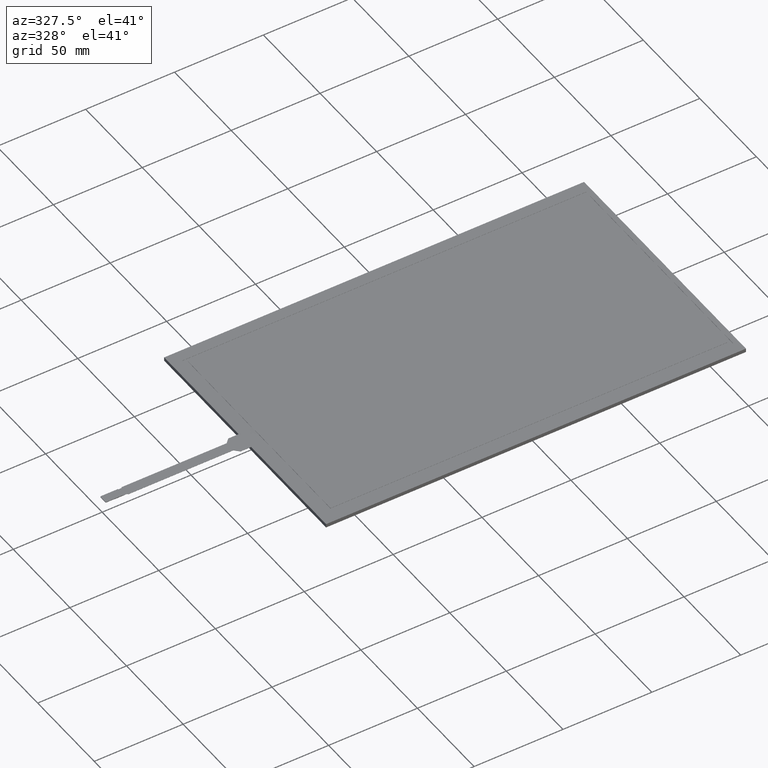
[diagram: clean part render]
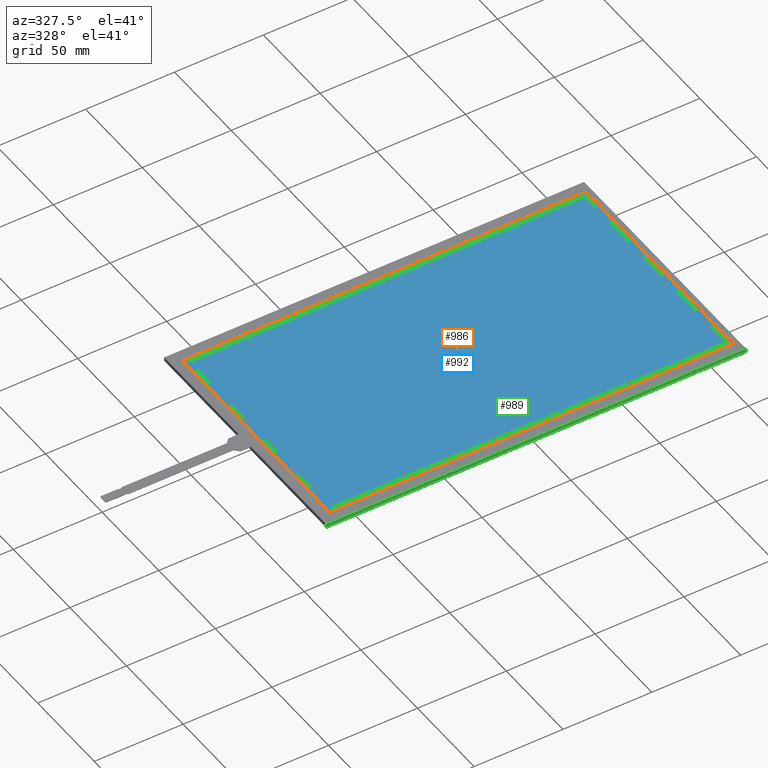
[diagram: same view with three faces highlighted in distinct colors, each labeled with its STEP entity id]
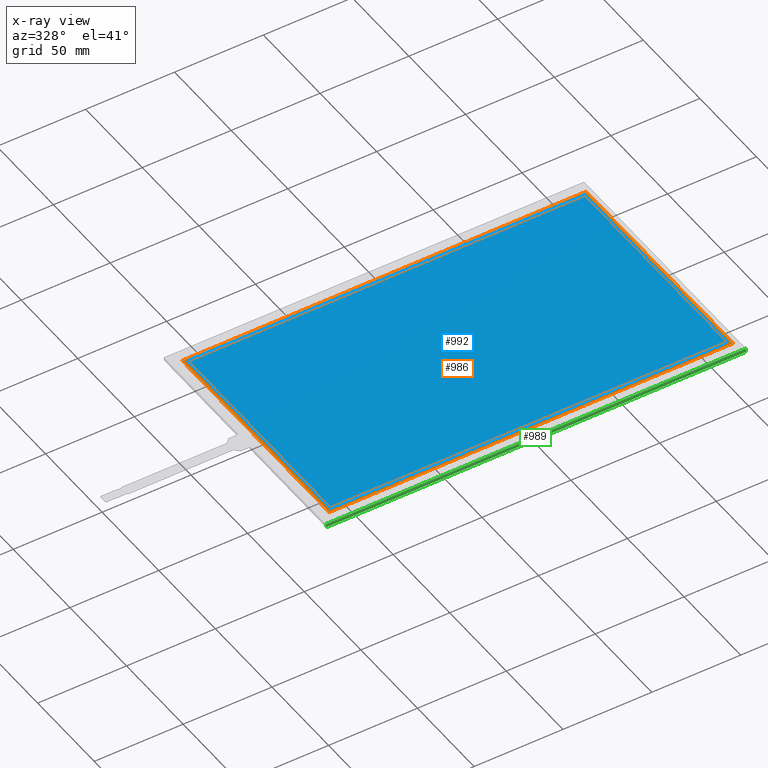
[diagram: x-ray of the same camera — body ghosted, the three highlighted faces saturated]
A machine part, auxiliary view with three faces highlighted in distinct colors.
The next image is the same camera in x-ray (body ghosted, the three faces saturated) — at least one of them is partly hidden behind the body in this view.
Their STEP definitions:

[orange] entity #986 — the highlighted planar face has unit normal (0, 0, -1).
#66=FACE_BOUND('',#129,.T.);
#76=FACE_OUTER_BOUND('',#128,.T.);
#128=EDGE_LOOP('',(#688,#689,#690,#691));
#129=EDGE_LOOP('',(#692,#693,#694,#695));
#176=LINE('',#1382,#302);
#180=LINE('',#1389,#306);
#183=LINE('',#1395,#309);
#185=LINE('',#1398,#311);
#188=LINE('',#1406,#314);
#192=LINE('',#1413,#318);
#195=LINE('',#1419,#321);
#197=LINE('',#1422,#323);
#302=VECTOR('',#1124,10.);
#306=VECTOR('',#1130,10.);
#309=VECTOR('',#1135,10.);
#311=VECTOR('',#1139,10.);
#314=VECTOR('',#1144,10.);
#318=VECTOR('',#1150,10.);
#321=VECTOR('',#1155,10.);
#323=VECTOR('',#1159,10.);
#428=VERTEX_POINT('',#1379);
#429=VERTEX_POINT('',#1381);
#431=VERTEX_POINT('',#1387);
#433=VERTEX_POINT('',#1393);
#436=VERTEX_POINT('',#1403);
#437=VERTEX_POINT('',#1405);
#439=VERTEX_POINT('',#1411);
#441=VERTEX_POINT('',#1417);
#520=EDGE_CURVE('',#428,#429,#176,.T.);
#524=EDGE_CURVE('',#431,#428,#180,.T.);
#527=EDGE_CURVE('',#433,#431,#183,.T.);
#529=EDGE_CURVE('',#429,#433,#185,.T.);
#532=EDGE_CURVE('',#436,#437,#188,.T.);
#536=EDGE_CURVE('',#439,#436,#192,.T.);
#539=EDGE_CURVE('',#441,#439,#195,.T.);
#541=EDGE_CURVE('',#437,#441,#197,.T.);
#688=ORIENTED_EDGE('',*,*,#541,.F.);
#689=ORIENTED_EDGE('',*,*,#532,.F.);
#690=ORIENTED_EDGE('',*,*,#536,.F.);
#691=ORIENTED_EDGE('',*,*,#539,.F.);
#692=ORIENTED_EDGE('',*,*,#529,.F.);
#693=ORIENTED_EDGE('',*,*,#520,.F.);
#694=ORIENTED_EDGE('',*,*,#524,.F.);
#695=ORIENTED_EDGE('',*,*,#527,.F.);
#940=PLANE('',#1062);
#986=ADVANCED_FACE('',(#76,#66),#940,.F.);
#1062=AXIS2_PLACEMENT_3D('',#1423,#1160,#1161);
#1124=DIRECTION('',(1.,0.,0.));
#1130=DIRECTION('',(0.,-1.,0.));
#1135=DIRECTION('',(-1.,0.,0.));
#1139=DIRECTION('',(0.,1.,0.));
#1144=DIRECTION('',(-4.10623402542823E-16,1.,0.));
#1150=DIRECTION('',(-1.,-1.17266757288107E-16,0.));
#1155=DIRECTION('',(0.,-1.,0.));
#1159=DIRECTION('',(1.,0.,0.));
#1160=DIRECTION('center_axis',(0.,0.,-1.));
#1161=DIRECTION('ref_axis',(-1.,0.,0.));
#1379=CARTESIAN_POINT('',(-111.61,-62.89,-0.1));
#1381=CARTESIAN_POINT('',(111.61,-62.89,-0.1));
#1382=CARTESIAN_POINT('',(111.61,-62.89,-0.1));
#1387=CARTESIAN_POINT('',(-111.61,62.89,-0.1));
#1389=CARTESIAN_POINT('',(-111.61,-62.89,-0.1));
#1393=CARTESIAN_POINT('',(111.61,62.89,-0.1));
#1395=CARTESIAN_POINT('',(-111.61,62.89,-0.1));
#1398=CARTESIAN_POINT('',(111.61,62.89,-0.1));
#1403=CARTESIAN_POINT('',(-113.61,-64.89,-0.1));
#1405=CARTESIAN_POINT('',(-113.61,64.89,-0.1));
#1406=CARTESIAN_POINT('',(-113.61,64.89,-0.1));
#1411=CARTESIAN_POINT('',(113.61,-64.89,-0.1));
#1413=CARTESIAN_POINT('',(-113.61,-64.89,-0.1));
#1417=CARTESIAN_POINT('',(113.61,64.89,-0.1));
#1419=CARTESIAN_POINT('',(113.61,-64.89,-0.1));
#1422=CARTESIAN_POINT('',(113.61,64.89,-0.1));
#1423=CARTESIAN_POINT('Origin',(-1.77635683940025E-14,-1.77635683940025E-14,
-0.1));

[blue] entity #992 — the highlighted planar face has unit normal (0, 0, 1).
#82=FACE_OUTER_BOUND('',#136,.T.);
#136=EDGE_LOOP('',(#720,#721,#722,#723));
#174=LINE('',#1378,#300);
#178=LINE('',#1386,#304);
#181=LINE('',#1392,#307);
#184=LINE('',#1397,#310);
#300=VECTOR('',#1122,10.);
#304=VECTOR('',#1128,10.);
#307=VECTOR('',#1133,10.);
#310=VECTOR('',#1138,10.);
#426=VERTEX_POINT('',#1376);
#427=VERTEX_POINT('',#1377);
#430=VERTEX_POINT('',#1385);
#432=VERTEX_POINT('',#1391);
#518=EDGE_CURVE('',#426,#427,#174,.T.);
#522=EDGE_CURVE('',#430,#426,#178,.T.);
#525=EDGE_CURVE('',#432,#430,#181,.T.);
#528=EDGE_CURVE('',#427,#432,#184,.T.);
#720=ORIENTED_EDGE('',*,*,#518,.T.);
#721=ORIENTED_EDGE('',*,*,#528,.T.);
#722=ORIENTED_EDGE('',*,*,#525,.T.);
#723=ORIENTED_EDGE('',*,*,#522,.T.);
#946=PLANE('',#1068);
#992=ADVANCED_FACE('',(#82),#946,.T.);
#1068=AXIS2_PLACEMENT_3D('',#1449,#1184,#1185);
#1122=DIRECTION('',(1.,0.,0.));
#1128=DIRECTION('',(0.,-1.,0.));
#1133=DIRECTION('',(-1.,0.,0.));
#1138=DIRECTION('',(0.,1.,0.));
#1184=DIRECTION('center_axis',(0.,0.,1.));
#1185=DIRECTION('ref_axis',(1.,0.,0.));
#1376=CARTESIAN_POINT('',(-111.61,-62.89,0.));
#1377=CARTESIAN_POINT('',(111.61,-62.89,0.));
#1378=CARTESIAN_POINT('',(-56.5175,-62.89,0.));
#1385=CARTESIAN_POINT('',(-111.61,62.89,0.));
#1386=CARTESIAN_POINT('',(-111.61,31.445,0.));
#1391=CARTESIAN_POINT('',(111.61,62.89,0.));
#1392=CARTESIAN_POINT('',(55.0925,62.89,0.));
#1397=CARTESIAN_POINT('',(111.61,-31.445,0.));
#1449=CARTESIAN_POINT('Origin',(-1.42500000000002,-1.33226762955019E-14,
0.));

[green] entity #989 — the highlighted planar face has unit normal (0, -1, 0).
#79=FACE_OUTER_BOUND('',#133,.T.);
#133=EDGE_LOOP('',(#708,#709,#710,#711));
#200=LINE('',#1431,#326);
#204=LINE('',#1438,#330);
#205=LINE('',#1441,#331);
#206=LINE('',#1442,#332);
#326=VECTOR('',#1166,10.);
#330=VECTOR('',#1172,10.);
#331=VECTOR('',#1175,10.);
#332=VECTOR('',#1176,10.);
#444=VERTEX_POINT('',#1428);
#445=VERTEX_POINT('',#1430);
#447=VERTEX_POINT('',#1436);
#448=VERTEX_POINT('',#1440);
#544=EDGE_CURVE('',#444,#445,#200,.T.);
#548=EDGE_CURVE('',#444,#447,#204,.T.);
#549=EDGE_CURVE('',#448,#447,#205,.T.);
#550=EDGE_CURVE('',#445,#448,#206,.T.);
#708=ORIENTED_EDGE('',*,*,#544,.F.);
#709=ORIENTED_EDGE('',*,*,#548,.T.);
#710=ORIENTED_EDGE('',*,*,#549,.F.);
#711=ORIENTED_EDGE('',*,*,#550,.F.);
#943=PLANE('',#1065);
#989=ADVANCED_FACE('',(#79),#943,.T.);
#1065=AXIS2_PLACEMENT_3D('',#1439,#1173,#1174);
#1166=DIRECTION('',(1.,1.12775014140618E-16,0.));
#1172=DIRECTION('',(0.,0.,-1.));
#1173=DIRECTION('center_axis',(1.12775014140618E-16,-1.,0.));
#1174=DIRECTION('ref_axis',(-1.,-1.12775014140618E-16,0.));
#1175=DIRECTION('',(-1.,-1.12775014140618E-16,0.));
#1176=DIRECTION('',(0.,0.,-1.));
#1428=CARTESIAN_POINT('',(-119.56,-71.5,0.));
#1430=CARTESIAN_POINT('',(116.71,-71.5,0.));
#1431=CARTESIAN_POINT('',(-119.56,-71.5,0.));
#1436=CARTESIAN_POINT('',(-119.56,-71.5,-2.1));
#1438=CARTESIAN_POINT('',(-119.56,-71.5,0.));
#1439=CARTESIAN_POINT('Origin',(116.71,-71.5,0.));
#1440=CARTESIAN_POINT('',(116.71,-71.5,-2.1));
#1441=CARTESIAN_POINT('',(-119.56,-71.5,-2.1));
#1442=CARTESIAN_POINT('',(116.71,-71.5,0.));